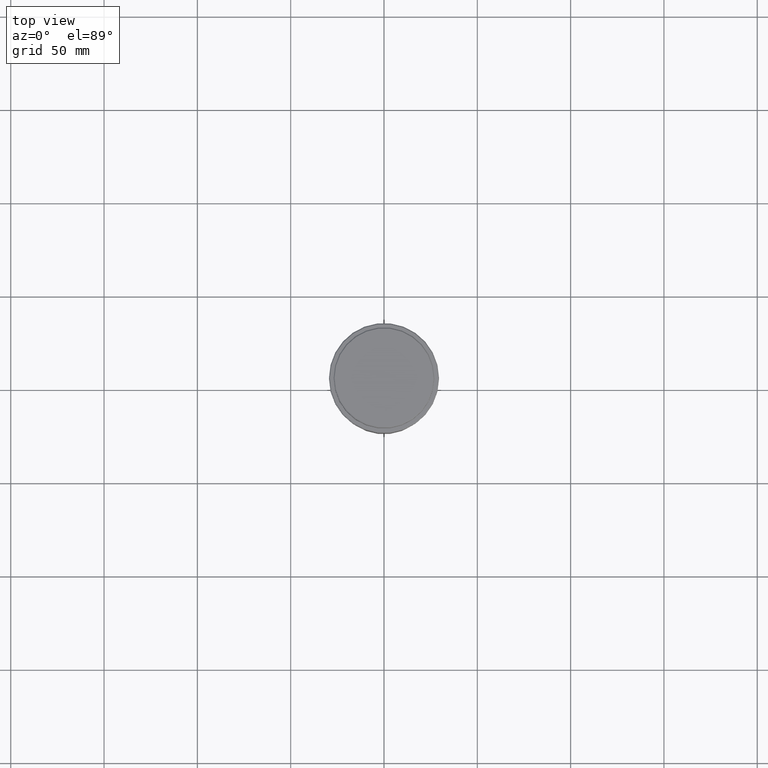
[diagram: clean part render]
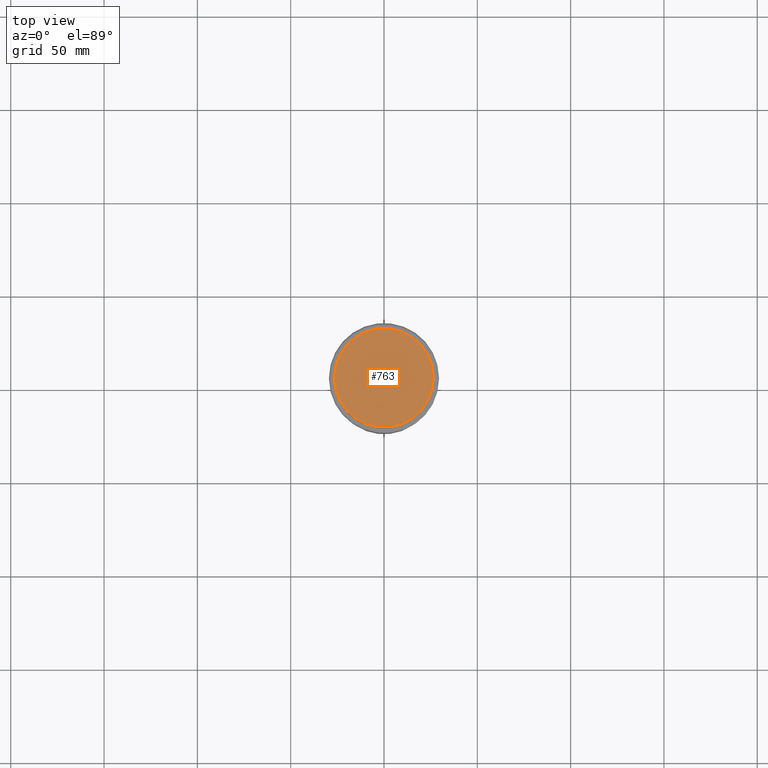
[diagram: same view with one face highlighted and labeled with its STEP entity id]
A machine part, top view. The second image highlights one B-rep face of the part: STEP entity #763.
In plain terms, the highlighted planar face has unit normal (0, -0, 1).
Its self-contained STEP definition (entity closure, byte-faithful):
#59 = DIRECTION ( 'NONE',  ( -0.000000000000000000, -0.000000000000000000, 1.000000000000000000 ) ) ;
#81 = DIRECTION ( 'NONE',  ( 1.000000000000000000, 0.000000000000000000, 0.000000000000000000 ) ) ;
#100 = AXIS2_PLACEMENT_3D ( 'NONE', #175, #59, #612 ) ;
#132 = ORIENTED_EDGE ( 'NONE', *, *, #1334, .T. ) ;
#144 = CIRCLE ( 'NONE', #953, 26.49999999999996803 ) ;
#175 = CARTESIAN_POINT ( 'NONE',  ( 0.000000000000000000, 0.000000000000000000, 0.000000000000000000 ) ) ;
#241 = DIRECTION ( 'NONE',  ( 0.000000000000000000, -0.000000000000000000, 1.000000000000000000 ) ) ;
#447 = PLANE ( 'NONE',  #1345 ) ;
#478 = EDGE_LOOP ( 'NONE', ( #608, #132 ) ) ;
#498 = CIRCLE ( 'NONE', #100, 26.49999999999996803 ) ;
#608 = ORIENTED_EDGE ( 'NONE', *, *, #613, .T. ) ;
#612 = DIRECTION ( 'NONE',  ( 1.000000000000000000, 0.000000000000000000, 0.000000000000000000 ) ) ;
#613 = EDGE_CURVE ( 'NONE', #1123, #770, #144, .T. ) ;
#672 = CARTESIAN_POINT ( 'NONE',  ( 26.49999999999996803, 3.275930187719167974E-15, 0.000000000000000000 ) ) ;
#763 = ADVANCED_FACE ( 'NONE', ( #1356 ), #447, .T. ) ;
#770 = VERTEX_POINT ( 'NONE', #672 ) ;
#778 = CARTESIAN_POINT ( 'NONE',  ( 0.000000000000000000, 0.000000000000000000, 0.000000000000000000 ) ) ;
#953 = AXIS2_PLACEMENT_3D ( 'NONE', #778, #990, #81 ) ;
#990 = DIRECTION ( 'NONE',  ( -0.000000000000000000, -0.000000000000000000, 1.000000000000000000 ) ) ;
#1119 = CARTESIAN_POINT ( 'NONE',  ( -26.49999999999996803, 0.000000000000000000, 0.000000000000000000 ) ) ;
#1123 = VERTEX_POINT ( 'NONE', #1119 ) ;
#1233 = CARTESIAN_POINT ( 'NONE',  ( 0.000000000000000000, 0.000000000000000000, 0.000000000000000000 ) ) ;
#1329 = DIRECTION ( 'NONE',  ( 1.000000000000000000, 0.000000000000000000, 0.000000000000000000 ) ) ;
#1334 = EDGE_CURVE ( 'NONE', #770, #1123, #498, .T. ) ;
#1345 = AXIS2_PLACEMENT_3D ( 'NONE', #1233, #241, #1329 ) ;
#1356 = FACE_OUTER_BOUND ( 'NONE', #478, .T. ) ;